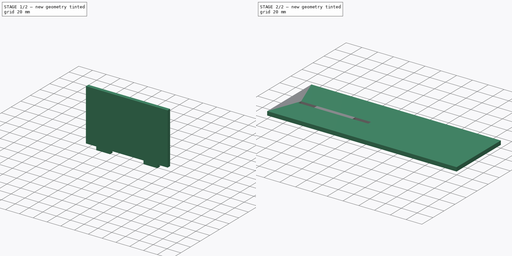
[diagram: build sequence overview — one tinted view per stage of 2, left to right]
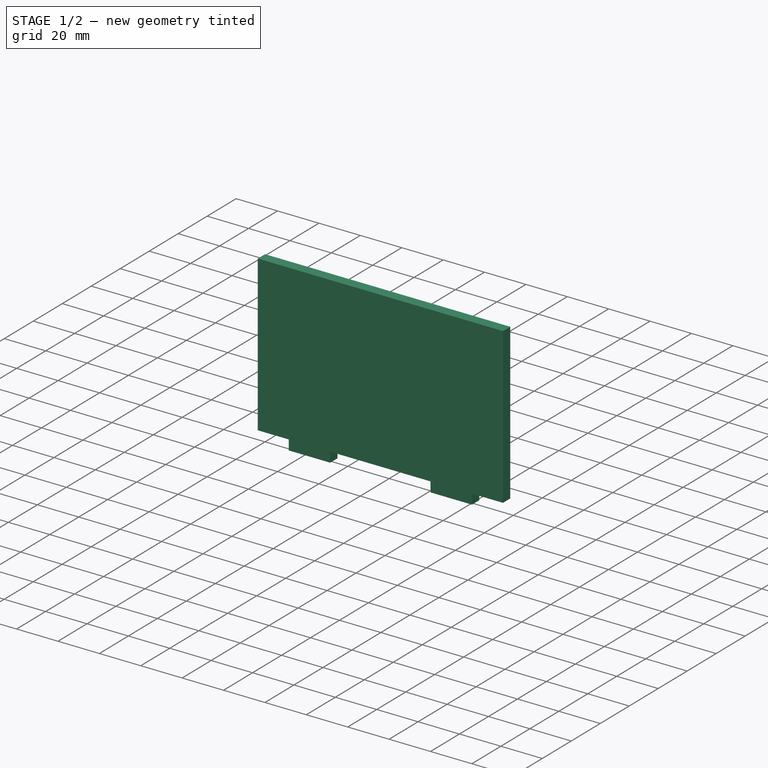
[diagram: stage 1 of 2 — iso view after this stage's code; geometry added in this stage tinted green]
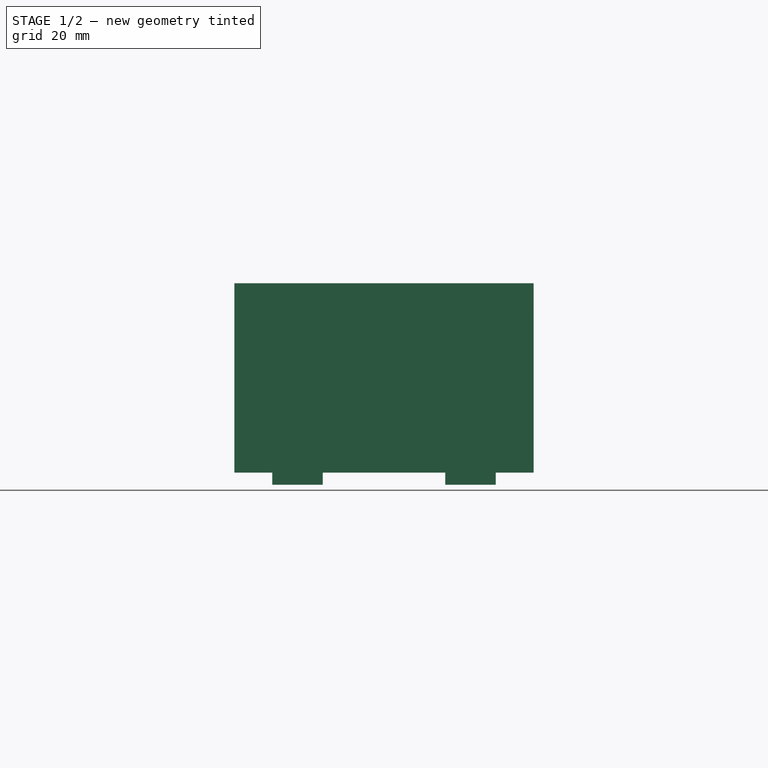
[diagram: stage 1 of 2 — front view after this stage's code; geometry added in this stage tinted green]
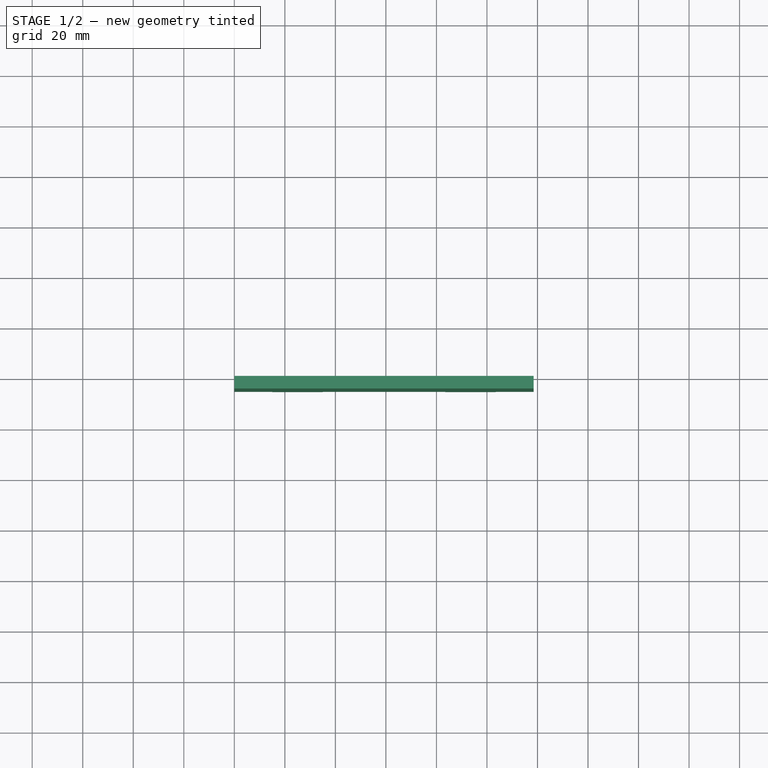
[diagram: stage 1 of 2 — top view after this stage's code; geometry added in this stage tinted green]
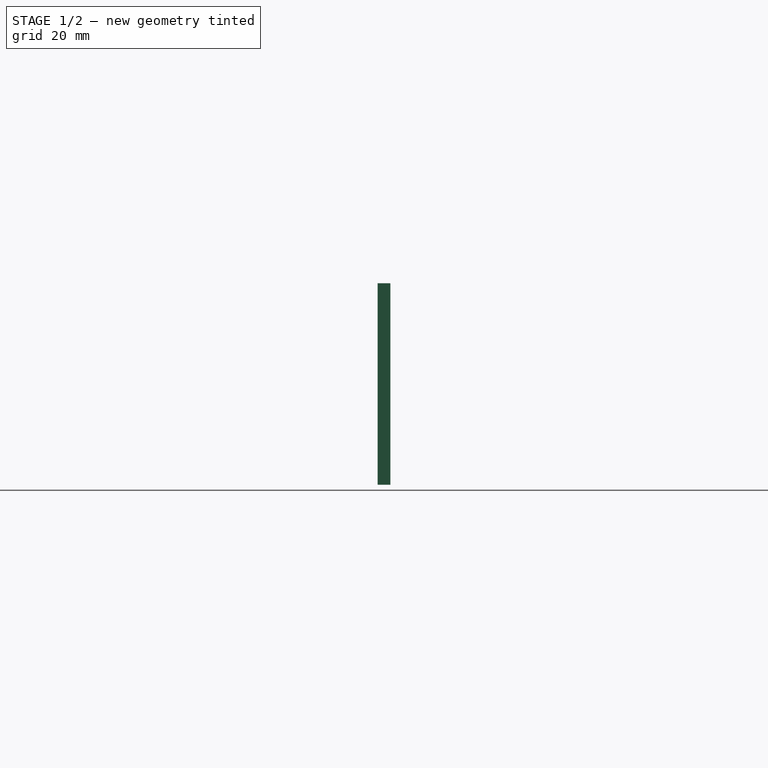
[diagram: stage 1 of 2 — right view after this stage's code; geometry added in this stage tinted green]
FCSTD DOCUMENT  (FreeCAD 0.19R24291 (Git))
Label: Exhibit_lable_holder
License: Other
LicenseURL: https://ohwr.org/project/cernohl/wikis/Documents/CERN-OHL-version-2
objects: Sketcher::SketchObject×3, PartDesign::Pad×3, PartDesign::Body×2, Part::Part2DObjectPython×2, PartDesign::SubShapeBinder×1
note: 14 computed .brp shape members not serialized (recipe doc carries the construction recipe); baked Part::Feature solids carry a one-line shape summary decoded from their .brp

FEATURE [Sketcher::SketchObject] Sketch
  FullyConstrained = true
  MapMode = 5
  Placement = pos=(0,0,0) rot=(1,0,0;1.5708rad)
  Support = -> [XZ_Plane]
  sketch-geometry (4):
    g0: LineSegment StartX=0 StartY=0 StartZ=0 EndX=118.5 EndY=0 EndZ=0
    g1: LineSegment StartX=118.5 StartY=0 StartZ=0 EndX=118.5 EndY=75 EndZ=0
    g2: LineSegment StartX=118.5 StartY=75 StartZ=0 EndX=0 EndY=75 EndZ=0
    g3: LineSegment StartX=0 StartY=75 StartZ=0 EndX=0 EndY=0 EndZ=0
  constraints (11):
    c: Coincident(g0,g1)
    c: Coincident(g1,g2)
    c: Coincident(g2,g3)
    c: Coincident(g3,g0)
    c: Horizontal(g0)
    c: Horizontal(g2)
    c: Vertical(g1)
    c: Vertical(g3)
    c: Coincident(g0,g-1)
    c: DistanceX(g2,g2) = 118.5
    c: DistanceY(g3,g3) = 75
FEATURE [PartDesign::Pad] Pad
  Direction = (1,1,1)
  Length = 5
  Length2 = 100
  Placement = pos=(0,0,0) rot=(1,0,0;1.5708rad)
  Profile = -> Sketch
  Type = 0
FEATURE [Sketcher::SketchObject] Sketch001
  ExternalGeometry = -> [Pad]
  FullyConstrained = true
  MapMode = 5
  Placement = pos=(0,0,0) rot=(1,0,0;3.14159rad)
  Support = -> [Pad]
  sketch-geometry (8):
    g0: LineSegment StartX=15 StartY=5 StartZ=0 EndX=35 EndY=5 EndZ=0
    g1: LineSegment StartX=35 StartY=5 StartZ=0 EndX=35 EndY=-6.45226e-11 EndZ=0
    g2: LineSegment StartX=35 StartY=-6.45226e-11 StartZ=0 EndX=15 EndY=-6.45226e-11 EndZ=0
    g3: LineSegment StartX=15 StartY=-6.45226e-11 StartZ=0 EndX=15 EndY=5 EndZ=0
    g4: LineSegment StartX=83.5 StartY=5 StartZ=0 EndX=103.5 EndY=5 EndZ=0
    g5: LineSegment StartX=103.5 StartY=5 StartZ=0 EndX=103.5 EndY=3.01563e-11 EndZ=0
    g6: LineSegment StartX=103.5 StartY=3.01563e-11 StartZ=0 EndX=83.5 EndY=3.01563e-11 EndZ=0
    g7: LineSegment StartX=83.5 StartY=3.01563e-11 StartZ=0 EndX=83.5 EndY=5 EndZ=0
  constraints (24):
    c: Coincident(g0,g1)
    c: Coincident(g1,g2)
    c: Coincident(g2,g3)
    c: Coincident(g3,g0)
    c: Horizontal(g0)
    c: Horizontal(g2)
    c: Vertical(g1)
    c: Vertical(g3)
    c: Coincident(g4,g5)
    c: Coincident(g5,g6)
    c: Coincident(g6,g7)
    c: Coincident(g7,g4)
    c: Horizontal(g4)
    c: Horizontal(g6)
    c: Vertical(g5)
    c: Vertical(g7)
    c: Equal(g1,g5)
    c: Equal(g5,g-3)
    c: Equal(g4,g0)
    c: PointOnObject(g0,g-4)
    c: PointOnObject(g4,g-4)
    c: DistanceX(g-4,g0) = 15
    c: DistanceX(g4,g-4) = 15
    c: DistanceX(g0,g0) = 20
FEATURE [PartDesign::Pad] Pad001
  BaseFeature = -> Pad
  Direction = (1,1,1)
  Length = 4.8
  Length2 = 100
  Placement = pos=(0,0,0) rot=(1,0,0;1.5708rad)
  Profile = -> Sketch001
  Type = 0
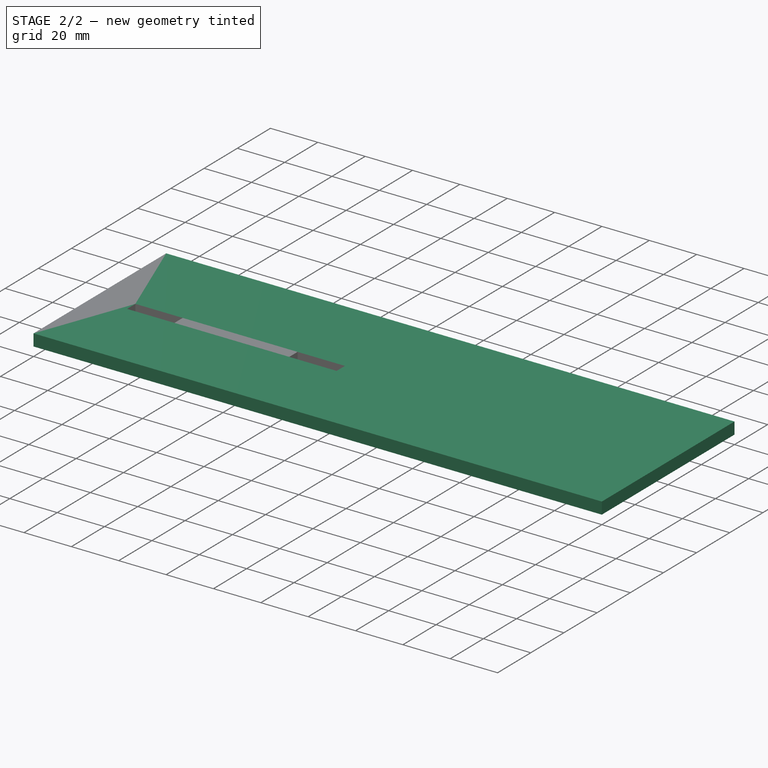
[diagram: stage 2 of 2 — iso view after this stage's code; geometry added in this stage tinted green]
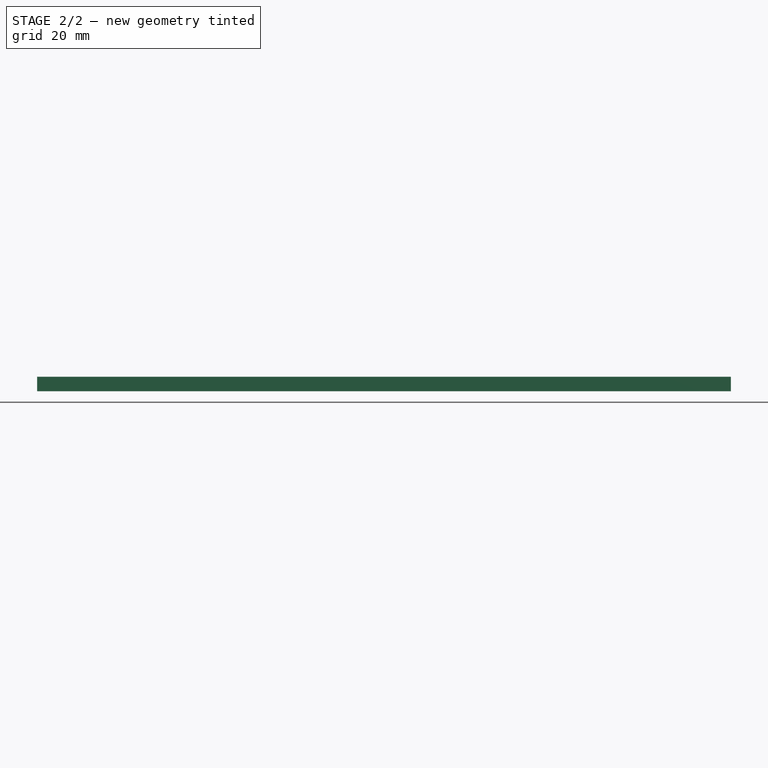
[diagram: stage 2 of 2 — front view after this stage's code; geometry added in this stage tinted green]
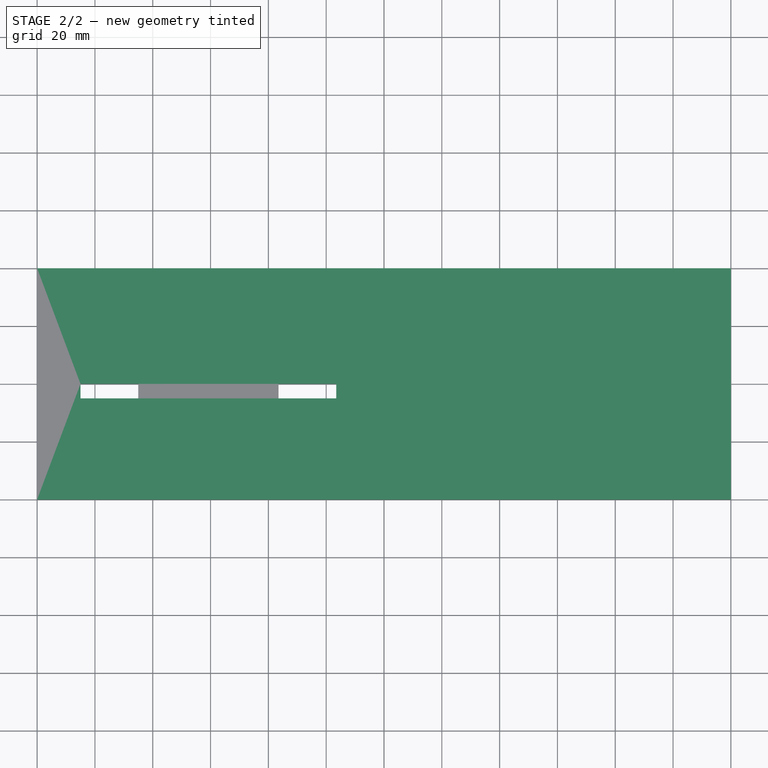
[diagram: stage 2 of 2 — top view after this stage's code; geometry added in this stage tinted green]
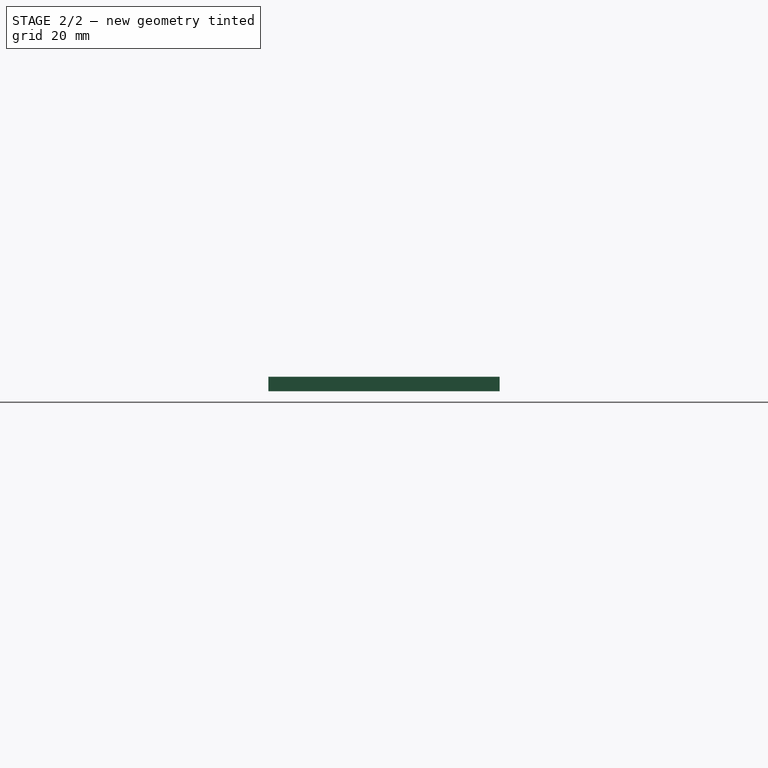
[diagram: stage 2 of 2 — right view after this stage's code; geometry added in this stage tinted green]
FEATURE [PartDesign::Body] Body
  Group = -> [Sketch,Pad,Sketch001,Pad001]
  Origin = -> Origin
  Tip = -> Pad001
FEATURE [PartDesign::SubShapeBinder] Binder
  BindMode = 0
  ClaimChildren = false
  Context = -> Body001 [Binder.]
  Fuse = false
  MakeFace = true
  PartialLoad = false
  Relative = true
  Support = -> [Body]
  _Version = 2
FEATURE [Sketcher::SketchObject] Sketch002
  ExternalGeometry = -> [Binder]
  FullyConstrained = true
  MapMode = 5
  Support = -> [XY_Plane001]
  sketch-geometry (12):
    g0: LineSegment StartX=0 StartY=40 StartZ=0 EndX=240 EndY=40 EndZ=0
    g1: LineSegment StartX=240 StartY=40 StartZ=0 EndX=240 EndY=-40 EndZ=0
    g2: LineSegment StartX=240 StartY=-40 StartZ=0 EndX=0 EndY=-40 EndZ=0
    g3: LineSegment StartX=0 StartY=-40 StartZ=0 EndX=0 EndY=40 EndZ=0
    g4: LineSegment StartX=15 StartY=0 StartZ=0 EndX=35 EndY=0 EndZ=0
    g5: LineSegment StartX=35 StartY=0 StartZ=0 EndX=35 EndY=-5 EndZ=0
    g6: LineSegment StartX=35 StartY=-5 StartZ=0 EndX=15 EndY=-5 EndZ=0
    g7: LineSegment StartX=15 StartY=-5 StartZ=0 EndX=15 EndY=0 EndZ=0
    g8: LineSegment StartX=83.5 StartY=0 StartZ=0 EndX=103.5 EndY=0 EndZ=0
    g9: LineSegment StartX=103.5 StartY=0 StartZ=0 EndX=103.5 EndY=-5 EndZ=0
    g10: LineSegment StartX=103.5 StartY=-5 StartZ=0 EndX=83.5 EndY=-5 EndZ=0
    g11: LineSegment StartX=83.5 StartY=-5 StartZ=0 EndX=83.5 EndY=0 EndZ=0
  constraints (31):
    c: Coincident(g0,g1)
    c: Coincident(g1,g2)
    c: Coincident(g2,g3)
    c: Coincident(g3,g0)
    c: Horizontal(g0)
    c: Horizontal(g2)
    c: Vertical(g1)
    c: DistanceY(g3,g3) = 80
    c: DistanceX(g0,g0) = 240
    c: PointOnObject(g0,g-2)
    c: Symmetric(g0,g2,g-1)
    c: Coincident(g4,g5)
    c: Coincident(g5,g6)
    c: Coincident(g6,g7)
    c: Coincident(g7,g4)
    c: Horizontal(g4)
    c: Horizontal(g6)
    c: Vertical(g5)
    c: Vertical(g7)
    c: Coincident(g4,g-3)
    c: Coincident(g5,g-4)
    c: Coincident(g8,g9)
    c: Coincident(g9,g10)
    c: Coincident(g10,g11)
    c: Coincident(g11,g8)
    c: Horizontal(g8)
    c: Horizontal(g10)
    c: Vertical(g9)
    c: Vertical(g11)
    c: Coincident(g8,g-5)
    c: Coincident(g9,g-6)
FEATURE [PartDesign::Pad] Pad002
  Direction = (1,1,1)
  Length = 5
  Length2 = 100
  Profile = -> Sketch002
  Reversed = true
  Type = 0
FEATURE [PartDesign::Body] Body001
  Group = -> [Sketch002,Binder,Pad002]
  Origin = -> Origin001
  Tip = -> Pad002
FEATURE [Part::Part2DObjectPython] Shape2DView  # Draft 2D object (typed FeaturePython)
  Base = -> Body
  FuseArch = false
  HiddenLines = false
  InPlace = true
  Projection = (0,-1,0)
  ProjectionMode = 0
  SegmentLength = 0.05
  Tessellation = false
  VisibleOnly = false
FEATURE [Part::Part2DObjectPython] Shape2DView002  # Draft 2D object (typed FeaturePython)
  Base = -> Pad002
  FaceNumbers = [12]
  FuseArch = false
  HiddenLines = false
  InPlace = true
  Projection = (0,0,1)
  ProjectionMode = 0
  SegmentLength = 0.05
  Tessellation = false
  VisibleOnly = false
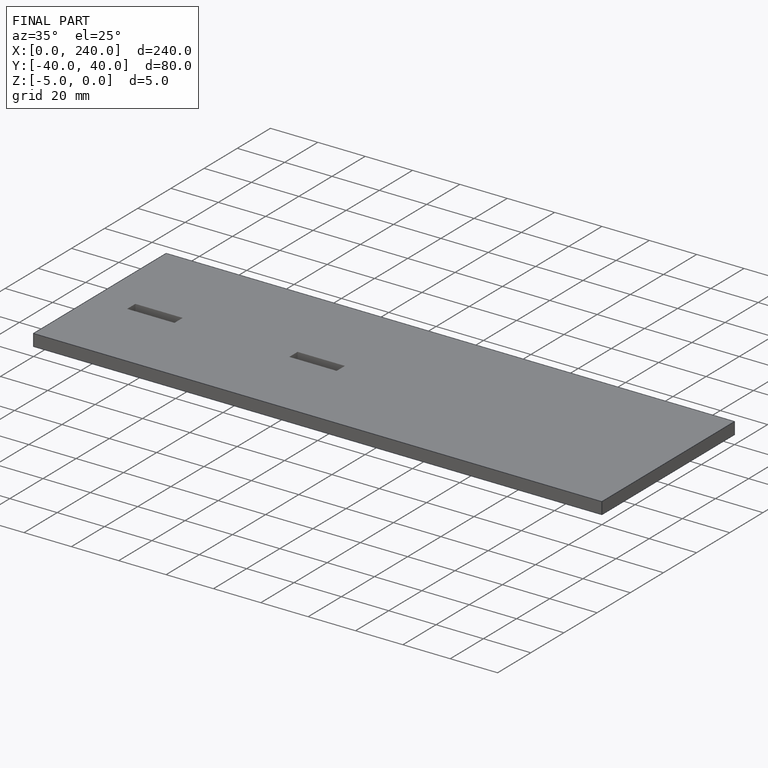
[diagram: finished part — iso view with bounding-box wireframe]
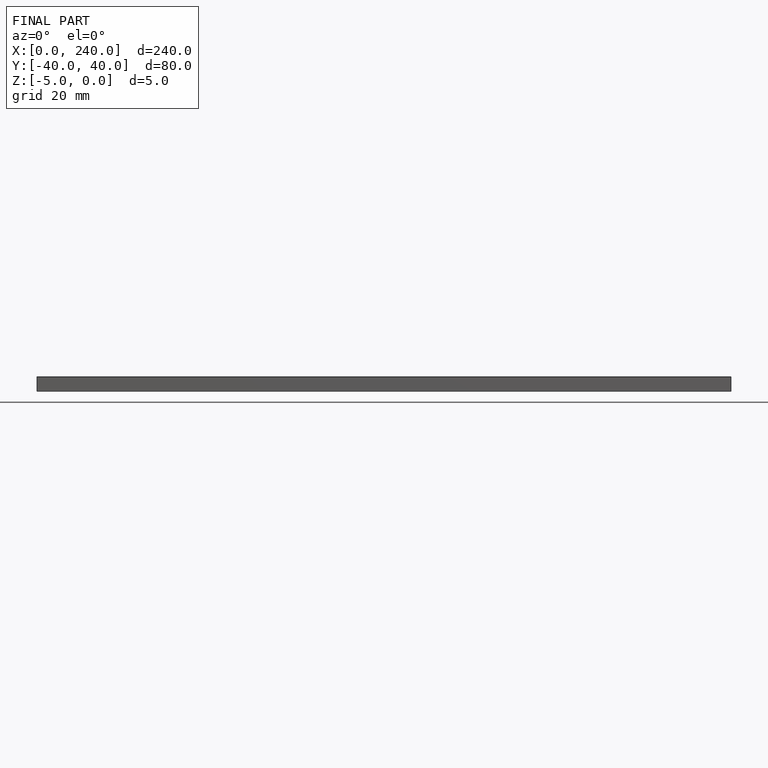
[diagram: finished part — front view with bounding-box wireframe]
